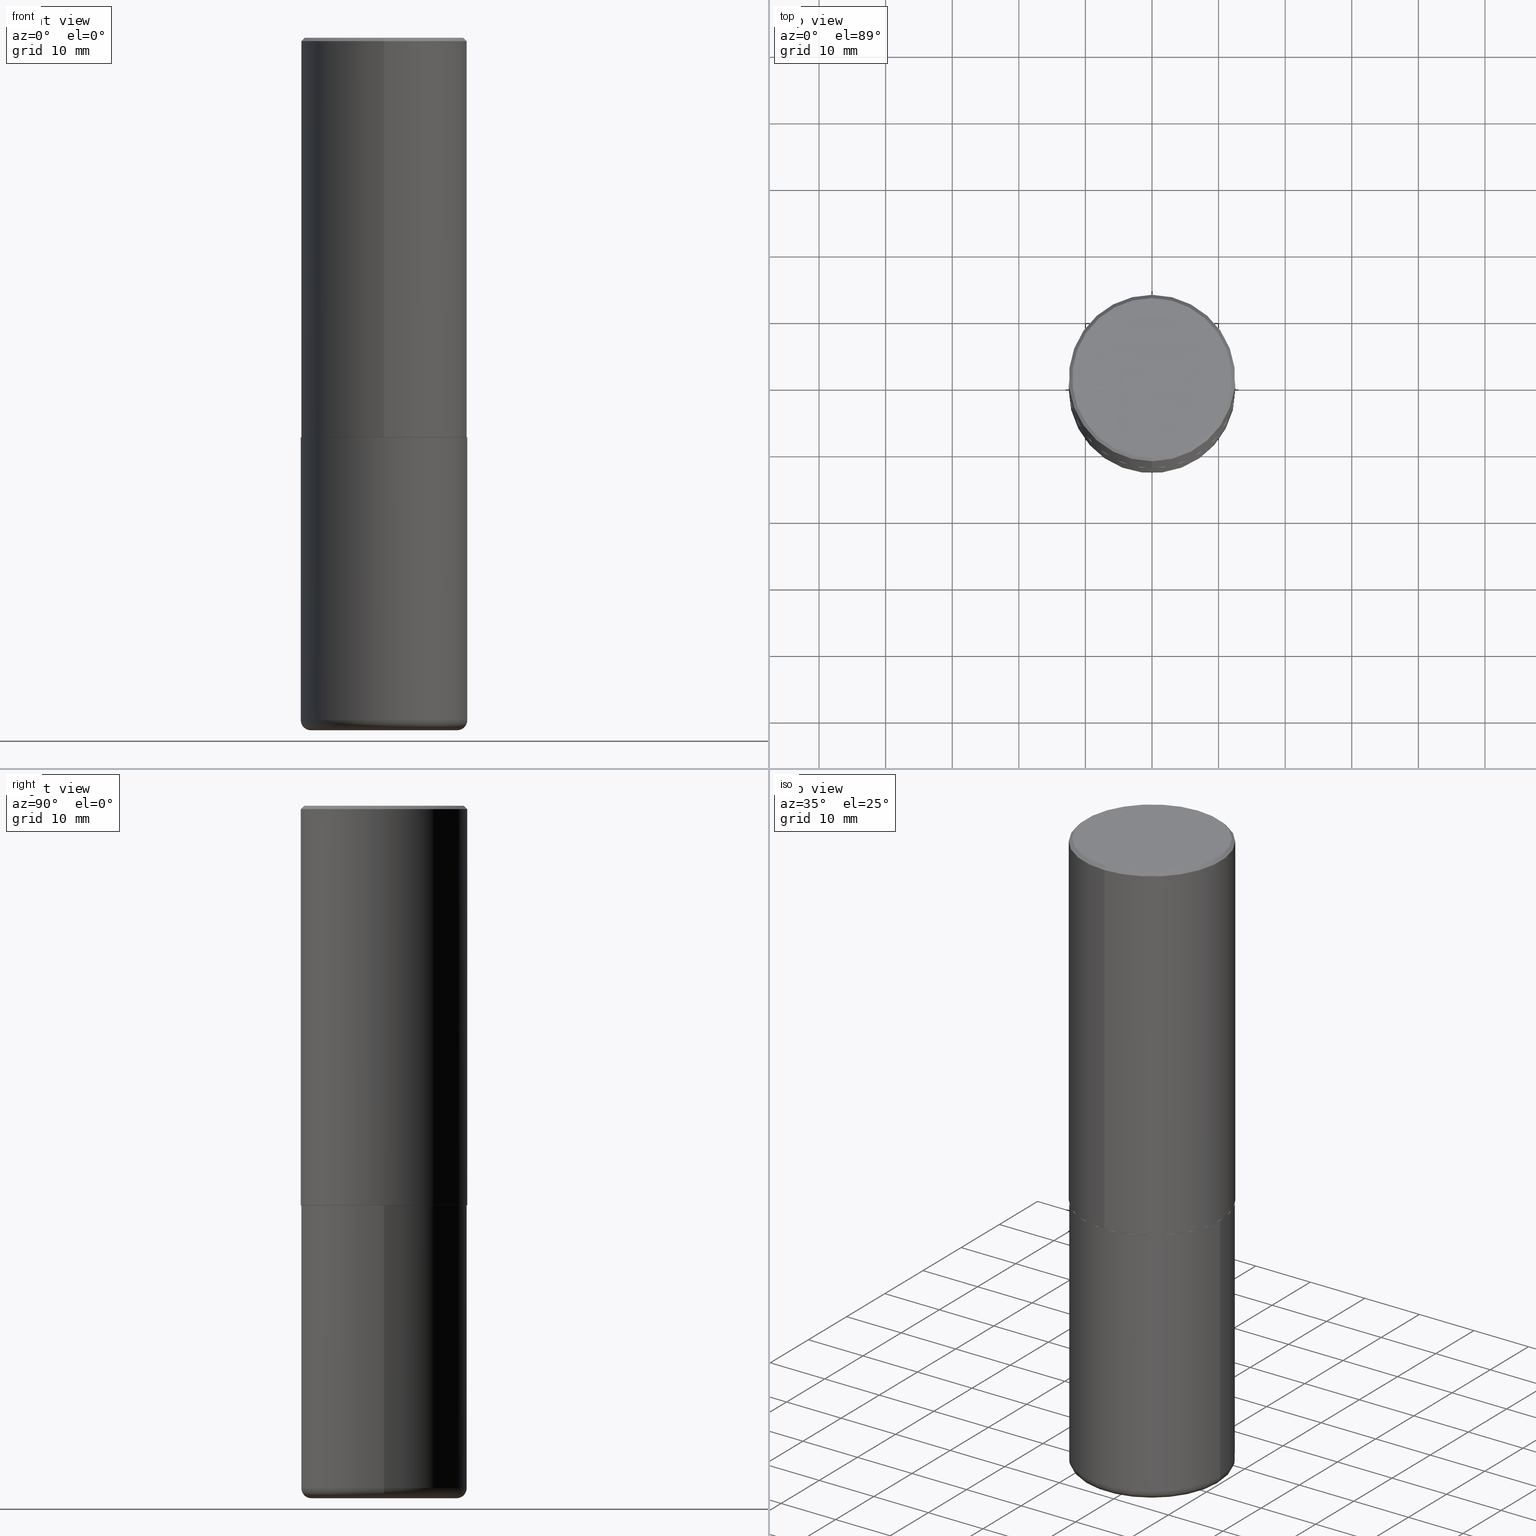
[diagram: canonical four-view strip — front | top / right | iso, engineering-drawing reading convention]
A machine part, canonical four-view strip (front | top / right | iso — engineering-drawing reading convention). The complete STEP part file that produces these views, byte-faithful:
ISO-10303-21;
HEADER;
FILE_DESCRIPTION (( 'STEP AP203' ),
    '1' );
FILE_NAME ('46133.STEP',
    '2024-03-04T18:40:35',
    ( '' ),
    ( '' ),
    'SwSTEP 2.0',
    'SolidWorks 2023',
    '' );
FILE_SCHEMA (( 'CONFIG_CONTROL_DESIGN' ));
ENDSEC;

DATA;
#1 = CARTESIAN_POINT ( 'NONE',  ( -0.4323499999999999566, -1.090699125381078817E-14, -4.094500000000000917 ) ) ;
#2 = ORIENTED_EDGE ( 'NONE', *, *, #113, .T. ) ;
#3 = AXIS2_PLACEMENT_3D ( 'NONE', #138, #401, #238 ) ;
#4 = AXIS2_PLACEMENT_3D ( 'NONE', #152, #90, #118 ) ;
#5 = EDGE_LOOP ( 'NONE', ( #37, #251 ) ) ;
#6 = ADVANCED_FACE ( 'NONE', ( #199 ), #342, .F. ) ;
#7 = DIRECTION ( 'NONE',  ( -2.447678359454775616E-29, 3.488317132801060457E-15, 1.000000000000000000 ) ) ;
#8 = ORIENTED_EDGE ( 'NONE', *, *, #119, .F. ) ;
#9 = DATE_TIME_ROLE ( 'creation_date' ) ;
#10 = ORIENTED_EDGE ( 'NONE', *, *, #416, .F. ) ;
#11 = DIRECTION ( 'NONE',  ( -6.982962677686265922E-15, -1.000000000000000000, 3.337287582609300506E-15 ) ) ;
#12 = CC_DESIGN_APPROVAL ( #393, ( #32 ) ) ;
#13 = EDGE_CURVE ( 'NONE', #357, #223, #204, .T. ) ;
#14 = DIRECTION ( 'NONE',  ( 6.982962677686265922E-15, 1.000000000000000000, -3.486624039460256937E-15 ) ) ;
#15 = DIRECTION ( 'NONE',  ( -6.982962677686266711E-15, -1.000000000000000000, 3.330506545156064285E-15 ) ) ;
#16 = PERSON_AND_ORGANIZATION ( #272, #207 ) ;
#17 = DIRECTION ( 'NONE',  ( -1.000000000000000000, 6.982962677686265922E-15, -4.876176775795935793E-29 ) ) ;
#18 = AXIS2_PLACEMENT_3D ( 'NONE', #146, #217, #21 ) ;
#19 = ADVANCED_FACE ( 'NONE', ( #233 ), #209, .T. ) ;
#20 = DIRECTION ( 'NONE',  ( -6.982962677686265922E-15, -1.000000000000000000, 3.486624039460256937E-15 ) ) ;
#21 = DIRECTION ( 'NONE',  ( -6.982962677686265922E-15, -1.000000000000000000, 3.337287582609300506E-15 ) ) ;
#22 = LINE ( 'NONE', #148, #135 ) ;
#23 = AXIS2_PLACEMENT_3D ( 'NONE', #158, #127, #133 ) ;
#24 = DIRECTION ( 'NONE',  ( -2.447678359454775616E-29, 3.488317132801060457E-15, 1.000000000000000000 ) ) ;
#25 = CARTESIAN_POINT ( 'NONE',  ( 3.366835455046433267E-15, 0.4721500000000000696, -1.742410188917000288E-15 ) ) ;
#26 = ORIENTED_EDGE ( 'NONE', *, *, #254, .F. ) ;
#27 = FACE_OUTER_BOUND ( 'NONE', #226, .T. ) ;
#28 = DIRECTION ( 'NONE',  ( -2.445468806185136877E-29, 3.491481338843145188E-15, 1.000000000000000000 ) ) ;
#29 = VERTEX_POINT ( 'NONE', #366 ) ;
#30 = EDGE_CURVE ( 'NONE', #189, #134, #266, .T. ) ;
#31 = CIRCLE ( 'NONE', #44, 0.4921500000000002539 ) ;
#32 = PRODUCT_DEFINITION_FORMATION_WITH_SPECIFIED_SOURCE ( 'ANY', '', #288, .NOT_KNOWN. ) ;
#33 = APPROVAL_STATUS ( 'not_yet_approved' ) ;
#34 = CARTESIAN_POINT ( 'NONE',  ( 5.781905820704071073E-29, -8.240102731102666843E-15, -2.362200000000000077 ) ) ;
#35 = APPLICATION_PROTOCOL_DEFINITION ( 'international standard', 'config_control_design', 1994, #240 ) ;
#36 = ORIENTED_EDGE ( 'NONE', *, *, #121, .T. ) ;
#37 = ORIENTED_EDGE ( 'NONE', *, *, #156, .F. ) ;
#38 = PERSON_AND_ORGANIZATION ( #272, #207 ) ;
#39 = CIRCLE ( 'NONE', #323, 0.4911499999999999755 ) ;
#40 = ORIENTED_EDGE ( 'NONE', *, *, #346, .T. ) ;
#41 = FACE_OUTER_BOUND ( 'NONE', #95, .T. ) ;
#42 = ORIENTED_EDGE ( 'NONE', *, *, #200, .F. ) ;
#43 = EDGE_CURVE ( 'NONE', #70, #363, #117, .T. ) ;
#44 = AXIS2_PLACEMENT_3D ( 'NONE', #86, #175, #15 ) ;
#45 = CARTESIAN_POINT ( 'NONE',  ( 0.000000000000000000, 0.000000000000000000, 0.000000000000000000 ) ) ;
#46 = AXIS2_PLACEMENT_3D ( 'NONE', #383, #413, #93 ) ;
#47 = DIRECTION ( 'NONE',  ( -2.445468806185136597E-29, 3.491481338843145583E-15, 1.000000000000000000 ) ) ;
#48 = FACE_OUTER_BOUND ( 'NONE', #255, .T. ) ;
#49 = DIRECTION ( 'NONE',  ( 1.000000000000000000, -6.982962677686265133E-15, 0.000000000000000000 ) ) ;
#50 = APPROVAL ( #219, 'UNSPECIFIED' ) ;
#51 = FACE_OUTER_BOUND ( 'NONE', #229, .T. ) ;
#52 = PERSON_AND_ORGANIZATION_ROLE ( 'design_supplier' ) ;
#53 = CARTESIAN_POINT ( 'NONE',  ( 5.776686413970530874E-29, -8.247577218615279626E-15, -2.362200000000000077 ) ) ;
#54 = AXIS2_PLACEMENT_3D ( 'NONE', #45, #168, #120 ) ;
#55 = DIRECTION ( 'NONE',  ( 1.000000000000000000, -6.982962677686265922E-15, 4.876176775795935793E-29 ) ) ;
#56 = LINE ( 'NONE', #206, #123 ) ;
#57 = DIRECTION ( 'NONE',  ( 2.447678359454775616E-29, -3.488317132801060457E-15, -1.000000000000000000 ) ) ;
#58 = ADVANCED_BREP_SHAPE_REPRESENTATION ( '46133', ( #353, #350, #414 ), #174 ) ;
#59 = AXIS2_PLACEMENT_3D ( 'NONE', #110, #399, #369 ) ;
#60 = AXIS2_PLACEMENT_3D ( 'NONE', #410, #408, #85 ) ;
#61 = CARTESIAN_POINT ( 'NONE',  ( 0.4921500000000000874, -1.752374483965373598E-14, -4.034700000000000841 ) ) ;
#62 = PLANE ( 'NONE',  #360 ) ;
#63 = LINE ( 'NONE', #314, #216 ) ;
#64 = EDGE_CURVE ( 'NONE', #286, #363, #201, .T. ) ;
#65 = PERSON_AND_ORGANIZATION_ROLE ( 'creator' ) ;
#66 = CIRCLE ( 'NONE', #409, 0.4921500000000000319 ) ;
#67 = AXIS2_PLACEMENT_3D ( 'NONE', #210, #178, #306 ) ;
#68 = DATE_AND_TIME ( #91, #317 ) ;
#69 = ORIENTED_EDGE ( 'NONE', *, *, #372, .T. ) ;
#70 = VERTEX_POINT ( 'NONE', #242 ) ;
#71 = ORIENTED_EDGE ( 'NONE', *, *, #405, .T. ) ;
#72 = AXIS2_PLACEMENT_3D ( 'NONE', #262, #79, #17 ) ;
#73 = APPROVAL_DATE_TIME ( #356, #50 ) ;
#74 = AXIS2_PLACEMENT_3D ( 'NONE', #385, #7, #283 ) ;
#75 = ORIENTED_EDGE ( 'NONE', *, *, #346, .F. ) ;
#76 = ORIENTED_EDGE ( 'NONE', *, *, #94, .T. ) ;
#77 = EDGE_CURVE ( 'NONE', #129, #286, #82, .T. ) ;
#78 = DIRECTION ( 'NONE',  ( 1.000000000000000000, -6.982962677686265922E-15, 4.876176775795935793E-29 ) ) ;
#79 = DIRECTION ( 'NONE',  ( 2.438088387897960049E-29, -3.491481338843145188E-15, -1.000000000000000000 ) ) ;
#80 = CIRCLE ( 'NONE', #309, 0.4921499999999999764 ) ;
#81 = LOCAL_TIME ( 13, 40, 35.00000000000000000, #358 ) ;
#82 = LINE ( 'NONE', #370, #340 ) ;
#83 = ORIENTED_EDGE ( 'NONE', *, *, #30, .F. ) ;
#84 = CARTESIAN_POINT ( 'NONE',  ( 4.895356718909577366E-31, -6.976634265602157842E-17, -0.02000000000000010797 ) ) ;
#85 = DIRECTION ( 'NONE',  ( -6.982962677686265922E-15, -1.000000000000000000, 3.337287582609300506E-15 ) ) ;
#86 = CARTESIAN_POINT ( 'NONE',  ( 5.779458142344616674E-29, -8.236614413969865531E-15, -2.361200000000000188 ) ) ;
#87 = PLANE ( 'NONE',  #67 ) ;
#88 = ORIENTED_EDGE ( 'NONE', *, *, #13, .F. ) ;
#89 = ADVANCED_FACE ( 'NONE', ( #51 ), #285, .T. ) ;
#90 = DIRECTION ( 'NONE',  ( -2.445468806185136597E-29, 3.491481338843145583E-15, 1.000000000000000000 ) ) ;
#91 = CALENDAR_DATE ( 2024, 4, 3 ) ;
#92 = AXIS2_PLACEMENT_3D ( 'NONE', #203, #364, #115 ) ;
#93 = DIRECTION ( 'NONE',  ( 1.000000000000000000, -6.982962677686264344E-15, 4.883557194083111780E-29 ) ) ;
#94 = EDGE_CURVE ( 'NONE', #352, #223, #80, .T. ) ;
#95 = EDGE_LOOP ( 'NONE', ( #97, #395, #411, #8 ) ) ;
#96 = DIRECTION ( 'NONE',  ( 0.000000000000000000, 0.000000000000000000, 1.000000000000000000 ) ) ;
#97 = ORIENTED_EDGE ( 'NONE', *, *, #234, .T. ) ;
#98 = CONICAL_SURFACE ( 'NONE', #334, 0.4921499999999999764, 0.7853981633974460586 ) ;
#99 = APPROVAL_PERSON_ORGANIZATION ( #140, #239, #179 ) ;
#100 = PERSON_AND_ORGANIZATION ( #272, #207 ) ;
#101 = VERTEX_POINT ( 'NONE', #336 ) ;
#102 = EDGE_CURVE ( 'NONE', #357, #289, #66, .T. ) ;
#103 = PERSON_AND_ORGANIZATION_ROLE ( 'design_owner' ) ;
#104 = ORIENTED_EDGE ( 'NONE', *, *, #43, .F. ) ;
#105 = ORIENTED_EDGE ( 'NONE', *, *, #263, .T. ) ;
#106 = CLOSED_SHELL ( 'NONE', ( #258, #89, #359, #320, #354, #19 ) ) ;
#107 = EDGE_CURVE ( 'NONE', #363, #286, #180, .T. ) ;
#108 = DIRECTION ( 'NONE',  ( -2.447678359454775616E-29, 3.488317132801060062E-15, 1.000000000000000000 ) ) ;
#109 = APPROVAL_DATE_TIME ( #329, #393 ) ;
#110 = CARTESIAN_POINT ( 'NONE',  ( 3.297005828269570364E-15, 0.4721500000000000696, -1.694709561584510512E-15 ) ) ;
#111 = AXIS2_PLACEMENT_3D ( 'NONE', #275, #147, #247 ) ;
#112 = DIRECTION ( 'NONE',  ( -2.447678359454775616E-29, 3.488317132801060062E-15, 1.000000000000000000 ) ) ;
#113 = EDGE_CURVE ( 'NONE', #289, #357, #396, .T. ) ;
#114 = PERSON_AND_ORGANIZATION_ROLE ( 'creator' ) ;
#115 = DIRECTION ( 'NONE',  ( 1.000000000000000000, -6.982962677686264344E-15, 4.883557194083111780E-29 ) ) ;
#116 = CARTESIAN_POINT ( 'NONE',  ( 5.776686413970530874E-29, -8.247577218615279626E-15, -2.362200000000000077 ) ) ;
#117 = LINE ( 'NONE', #338, #294 ) ;
#118 = DIRECTION ( 'NONE',  ( 1.000000000000000000, -6.982962677686265133E-15, 0.000000000000000000 ) ) ;
#119 = EDGE_CURVE ( 'NONE', #134, #363, #56, .T. ) ;
#120 = DIRECTION ( 'NONE',  ( -6.982962677686265922E-15, -1.000000000000000000, 3.488317132801060457E-15 ) ) ;
#121 = EDGE_CURVE ( 'NONE', #129, #134, #31, .T. ) ;
#122 = DIRECTION ( 'NONE',  ( 5.024295867788576727E-15, 0.7071067811866224018, 0.7071067811864726327 ) ) ;
#123 = VECTOR ( 'NONE', #108, 39.37007874015748143 ) ;
#124 = CYLINDRICAL_SURFACE ( 'NONE', #301, 0.4921499999999999764 ) ;
#125 = COORDINATED_UNIVERSAL_TIME_OFFSET ( 5, 0, .BEHIND. ) ;
#126 = ORIENTED_EDGE ( 'NONE', *, *, #328, .T. ) ;
#127 = DIRECTION ( 'NONE',  ( -6.982962677686266711E-15, -1.000000000000000000, 3.491481338843145583E-15 ) ) ;
#128 = SHAPE_DEFINITION_REPRESENTATION ( #387, #58 ) ;
#129 = VERTEX_POINT ( 'NONE', #177 ) ;
#130 =( NAMED_UNIT ( * ) PLANE_ANGLE_UNIT ( ) SI_UNIT ( $, .RADIAN. ) );
#131 = ORIENTED_EDGE ( 'NONE', *, *, #234, .F. ) ;
#132 = CC_DESIGN_DATE_AND_TIME_ASSIGNMENT ( #220, #218, ( #269 ) ) ;
#133 = DIRECTION ( 'NONE',  ( 1.000000000000000000, -6.982962677686294321E-15, 0.000000000000000000 ) ) ;
#134 = VERTEX_POINT ( 'NONE', #136 ) ;
#135 = VECTOR ( 'NONE', #188, 39.37007874015748143 ) ;
#136 = CARTESIAN_POINT ( 'NONE',  ( -3.436665081823239768E-15, -0.4921500000000085251, -2.361199999999998411 ) ) ;
#137 = CYLINDRICAL_SURFACE ( 'NONE', #54, 0.4921500000000000874 ) ;
#138 = CARTESIAN_POINT ( 'NONE',  ( 1.001297202692504327E-28, -1.429587034189326465E-14, -4.094500000000000917 ) ) ;
#139 = ADVANCED_FACE ( 'NONE', ( #296 ), #98, .T. ) ;
#140 = PERSON_AND_ORGANIZATION ( #272, #207 ) ;
#141 = LOCAL_TIME ( 13, 40, 35.00000000000000000, #202 ) ;
#142 = CONICAL_SURFACE ( 'NONE', #167, 0.4921499999999999764, 0.7853981633974460586 ) ;
#143 = DIRECTION ( 'NONE',  ( -2.445468806185136597E-29, 3.491481338843145583E-15, 1.000000000000000000 ) ) ;
#144 = CYLINDRICAL_SURFACE ( 'NONE', #287, 0.4921499999999999764 ) ;
#145 = CARTESIAN_POINT ( 'NONE',  ( 4.895356718909577366E-31, -6.976634265602157842E-17, -0.02000000000000010797 ) ) ;
#146 = CARTESIAN_POINT ( 'NONE',  ( 5.781905820704071073E-29, -8.240102731102666843E-15, -2.362200000000000077 ) ) ;
#147 = DIRECTION ( 'NONE',  ( 7.105427357601001859E-15, 1.000000000000000000, -3.491481338843145583E-15 ) ) ;
#148 = CARTESIAN_POINT ( 'NONE',  ( 3.436665081823296171E-15, 0.4921499999999999209, -0.02000000000000182188 ) ) ;
#149 = CIRCLE ( 'NONE', #3, 0.4323499999999999566 ) ;
#150 = FACE_OUTER_BOUND ( 'NONE', #253, .T. ) ;
#151 = CARTESIAN_POINT ( 'NONE',  ( 3.489830646685789081E-15, 0.4911499999999917043, -2.362200000000001854 ) ) ;
#152 = CARTESIAN_POINT ( 'NONE',  ( 1.001297202692504327E-28, -1.429587034189326465E-14, -4.094500000000000917 ) ) ;
#153 = CIRCLE ( 'NONE', #23, 0.05980000000000013777 ) ;
#154 = APPROVAL_ROLE ( '' ) ;
#155 = PERSON_AND_ORGANIZATION ( #272, #207 ) ;
#156 = EDGE_CURVE ( 'NONE', #29, #418, #149, .T. ) ;
#157 = ORIENTED_EDGE ( 'NONE', *, *, #64, .T. ) ;
#158 = CARTESIAN_POINT ( 'NONE',  ( 0.4323499999999999566, -1.710616367152809970E-14, -4.034700000000000841 ) ) ;
#159 = ORIENTED_EDGE ( 'NONE', *, *, #30, .T. ) ;
#160 = LOCAL_TIME ( 13, 40, 35.00000000000000000, #184 ) ;
#161 = CALENDAR_DATE ( 2024, 4, 3 ) ;
#162 = ORIENTED_EDGE ( 'NONE', *, *, #263, .F. ) ;
#163 = APPROVAL_DATE_TIME ( #68, #239 ) ;
#164 = EDGE_LOOP ( 'NONE', ( #104, #315, #355, #157 ) ) ;
#165 = PERSON_AND_ORGANIZATION_ROLE ( 'classification_officer' ) ;
#166 = ORIENTED_EDGE ( 'NONE', *, *, #156, .T. ) ;
#167 = AXIS2_PLACEMENT_3D ( 'NONE', #375, #57, #208 ) ;
#168 = DIRECTION ( 'NONE',  ( -2.447678359454775616E-29, 3.488317132801060457E-15, 1.000000000000000000 ) ) ;
#169 = CARTESIAN_POINT ( 'NONE',  ( 9.866732992315171563E-29, -1.408707975783044020E-14, -4.034700000000000841 ) ) ;
#170 = DESIGN_CONTEXT ( 'detailed design', #240, 'design' ) ;
#171 = CC_DESIGN_PERSON_AND_ORGANIZATION_ASSIGNMENT ( #155, #103, ( #288 ) ) ;
#172 = CARTESIAN_POINT ( 'NONE',  ( -3.429682119145551781E-15, -0.4911500000000082466, -2.362199999999998745 ) ) ;
#173 = DIRECTION ( 'NONE',  ( -2.447678359454775616E-29, 3.488317132801060457E-15, 1.000000000000000000 ) ) ;
#174 =( GEOMETRIC_REPRESENTATION_CONTEXT ( 3 ) GLOBAL_UNCERTAINTY_ASSIGNED_CONTEXT ( ( #185 ) ) GLOBAL_UNIT_ASSIGNED_CONTEXT ( ( #319, #130, #394 ) ) REPRESENTATION_CONTEXT ( 'NONE', 'WORKASPACE' ) );
#175 = DIRECTION ( 'NONE',  ( -2.447678359454775616E-29, 3.488317132801060457E-15, 1.000000000000000000 ) ) ;
#176 = PRODUCT_RELATED_PRODUCT_CATEGORY ( 'detail', '', ( #288 ) ) ;
#177 = CARTESIAN_POINT ( 'NONE',  ( 3.496936074043363268E-15, 0.4921499999999920383, -2.361200000000001964 ) ) ;
#178 = DIRECTION ( 'NONE',  ( -2.447678359454775616E-29, 3.488317132801060062E-15, 1.000000000000000000 ) ) ;
#179 = APPROVAL_ROLE ( '' ) ;
#180 = CIRCLE ( 'NONE', #379, 0.4921499999999999764 ) ;
#181 = CIRCLE ( 'NONE', #264, 0.4721500000000000696 ) ;
#182 = VERTEX_POINT ( 'NONE', #25 ) ;
#183 = CARTESIAN_POINT ( 'NONE',  ( 5.776686413970530874E-29, -8.247577218615279626E-15, -2.362200000000000077 ) ) ;
#184 = COORDINATED_UNIVERSAL_TIME_OFFSET ( 5, 0, .BEHIND. ) ;
#185 = UNCERTAINTY_MEASURE_WITH_UNIT (LENGTH_MEASURE( 1.000000000000000082E-05 ), #319, 'distance_accuracy_value', 'NONE');
#186 =( LENGTH_UNIT ( ) NAMED_UNIT ( * ) SI_UNIT ( $, .METRE. ) );
#187 = EDGE_LOOP ( 'NONE', ( #331, #361, #324, #250 ) ) ;
#188 = DIRECTION ( 'NONE',  ( 4.937700262164536209E-15, 0.7071067811865434649, -0.7071067811865515695 ) ) ;
#189 = VERTEX_POINT ( 'NONE', #378 ) ;
#190 = LENGTH_MEASURE_WITH_UNIT ( LENGTH_MEASURE( 0.02539999999999999897 ), #186 );
#191 = ORIENTED_EDGE ( 'NONE', *, *, #254, .T. ) ;
#192 = AXIS2_PLACEMENT_3D ( 'NONE', #116, #371, #196 ) ;
#193 = APPLICATION_CONTEXT ( 'configuration controlled 3d designs of mechanical parts and assemblies' ) ;
#194 = DATE_AND_TIME ( #161, #160 ) ;
#195 = ORIENTED_EDGE ( 'NONE', *, *, #245, .T. ) ;
#196 = DIRECTION ( 'NONE',  ( 1.000000000000000000, -6.982962677686263555E-15, 0.000000000000000000 ) ) ;
#197 = EDGE_LOOP ( 'NONE', ( #76, #105 ) ) ;
#198 = DIRECTION ( 'NONE',  ( -6.982962677686265922E-15, -1.000000000000000000, 3.488317132801060457E-15 ) ) ;
#199 = FACE_OUTER_BOUND ( 'NONE', #318, .T. ) ;
#200 = EDGE_CURVE ( 'NONE', #418, #357, #237, .T. ) ;
#201 = CIRCLE ( 'NONE', #300, 0.4921499999999999764 ) ;
#202 = COORDINATED_UNIVERSAL_TIME_OFFSET ( 5, 0, .BEHIND. ) ;
#203 = CARTESIAN_POINT ( 'NONE',  ( 9.866732992315171563E-29, -1.408707975783044020E-14, -4.034700000000000841 ) ) ;
#204 = LINE ( 'NONE', #299, #243 ) ;
#205 = CC_DESIGN_PERSON_AND_ORGANIZATION_ASSIGNMENT ( #38, #65, ( #291 ) ) ;
#206 = CARTESIAN_POINT ( 'NONE',  ( -3.436665081823296565E-15, -0.4921500000000000874, 1.716775276908042252E-15 ) ) ;
#207 = ORGANIZATION ( 'UNSPECIFIED', 'UNSPECIFIED', '' ) ;
#208 = DIRECTION ( 'NONE',  ( 6.982962677686265922E-15, 1.000000000000000000, -3.486624039460256937E-15 ) ) ;
#209 = PLANE ( 'NONE',  #72 ) ;
#210 = CARTESIAN_POINT ( 'NONE',  ( 5.781905820704071073E-29, -8.240102731102666843E-15, -2.362200000000000077 ) ) ;
#211 = ORIENTED_EDGE ( 'NONE', *, *, #121, .F. ) ;
#212 = FACE_OUTER_BOUND ( 'NONE', #164, .T. ) ;
#213 = CC_DESIGN_DATE_AND_TIME_ASSIGNMENT ( #194, #9, ( #291 ) ) ;
#214 = DIMENSIONAL_EXPONENTS ( 1.000000000000000000, 0.000000000000000000, 0.000000000000000000, 0.000000000000000000, 0.000000000000000000, 0.000000000000000000, 0.000000000000000000 ) ;
#215 = FACE_OUTER_BOUND ( 'NONE', #310, .T. ) ;
#216 = VECTOR ( 'NONE', #28, 39.37007874015748143 ) ;
#217 = DIRECTION ( 'NONE',  ( -2.447678359454775616E-29, 3.488317132801060457E-15, 1.000000000000000000 ) ) ;
#218 = DATE_TIME_ROLE ( 'classification_date' ) ;
#219 = APPROVAL_STATUS ( 'not_yet_approved' ) ;
#220 = DATE_AND_TIME ( #335, #141 ) ;
#221 = CARTESIAN_POINT ( 'NONE',  ( 0.000000000000000000, 0.000000000000000000, 0.000000000000000000 ) ) ;
#222 = AXIS2_PLACEMENT_3D ( 'NONE', #305, #241, #49 ) ;
#223 = VERTEX_POINT ( 'NONE', #307 ) ;
#224 = TOROIDAL_SURFACE ( 'NONE', #46, 0.4323499999999999566, 0.05980000000000017246 ) ;
#225 = APPROVAL_ROLE ( '' ) ;
#226 = EDGE_LOOP ( 'NONE', ( #191, #40, #131, #83 ) ) ;
#227 = CALENDAR_DATE ( 2024, 4, 3 ) ;
#228 = ORIENTED_EDGE ( 'NONE', *, *, #102, .F. ) ;
#229 = EDGE_LOOP ( 'NONE', ( #166, #293, #407, #282 ) ) ;
#230 = CLOSED_SHELL ( 'NONE', ( #368, #284, #139, #380, #270, #343, #386, #6 ) ) ;
#231 = CIRCLE ( 'NONE', #4, 0.4323499999999999566 ) ;
#232 = ORIENTED_EDGE ( 'NONE', *, *, #64, .F. ) ;
#233 = FACE_OUTER_BOUND ( 'NONE', #5, .T. ) ;
#234 = EDGE_CURVE ( 'NONE', #134, #129, #345, .T. ) ;
#235 = PERSON_AND_ORGANIZATION ( #272, #207 ) ;
#236 = EDGE_LOOP ( 'NONE', ( #2, #321, #290, #392 ) ) ;
#237 = CIRCLE ( 'NONE', #111, 0.05980000000000013777 ) ;
#238 = DIRECTION ( 'NONE',  ( 1.000000000000000000, -6.982962677686265133E-15, 0.000000000000000000 ) ) ;
#239 = APPROVAL ( #404, 'UNSPECIFIED' ) ;
#240 = APPLICATION_CONTEXT ( 'configuration controlled 3d designs of mechanical parts and assemblies' ) ;
#241 = DIRECTION ( 'NONE',  ( -2.445468806185136597E-29, 3.491481338843145583E-15, 1.000000000000000000 ) ) ;
#242 = CARTESIAN_POINT ( 'NONE',  ( -3.307789109625543325E-15, -0.4721500000000000696, 1.551607679587041380E-15 ) ) ;
#243 = VECTOR ( 'NONE', #265, 39.37007874015748143 ) ;
#244 = CC_DESIGN_APPROVAL ( #239, ( #269 ) ) ;
#245 = EDGE_CURVE ( 'NONE', #289, #352, #63, .T. ) ;
#246 = CIRCLE ( 'NONE', #74, 0.4721500000000000696 ) ;
#247 = DIRECTION ( 'NONE',  ( -1.000000000000000000, 7.105427357601017636E-15, 0.000000000000000000 ) ) ;
#248 = CARTESIAN_POINT ( 'NONE',  ( -0.4921500000000000874, -1.059014368378710651E-14, -4.034700000000000841 ) ) ;
#249 = CC_DESIGN_PERSON_AND_ORGANIZATION_ASSIGNMENT ( #235, #165, ( #269 ) ) ;
#250 = ORIENTED_EDGE ( 'NONE', *, *, #400, .F. ) ;
#251 = ORIENTED_EDGE ( 'NONE', *, *, #372, .F. ) ;
#252 = AXIS2_PLACEMENT_3D ( 'NONE', #326, #281, #349 ) ;
#253 = EDGE_LOOP ( 'NONE', ( #75, #388, #159, #211 ) ) ;
#254 = EDGE_CURVE ( 'NONE', #189, #101, #39, .T. ) ;
#255 = EDGE_LOOP ( 'NONE', ( #327, #36, #256, #232 ) ) ;
#256 = ORIENTED_EDGE ( 'NONE', *, *, #119, .T. ) ;
#257 = APPROVAL_PERSON_ORGANIZATION ( #279, #393, #154 ) ;
#258 = ADVANCED_FACE ( 'NONE', ( #302 ), #144, .T. ) ;
#259 = CARTESIAN_POINT ( 'NONE',  ( 4.895356718909577366E-31, -6.976634265602157842E-17, -0.02000000000000010797 ) ) ;
#260 = CALENDAR_DATE ( 2024, 4, 3 ) ;
#261 = DIRECTION ( 'NONE',  ( -4.937700262165053702E-15, -0.7071067811866175168, 0.7071067811864775177 ) ) ;
#262 = CARTESIAN_POINT ( 'NONE',  ( 6.399774875433390499E-29, -1.947017431323977898E-14, -4.094500000000000917 ) ) ;
#263 = EDGE_CURVE ( 'NONE', #223, #352, #367, .T. ) ;
#264 = AXIS2_PLACEMENT_3D ( 'NONE', #304, #24, #377 ) ;
#265 = DIRECTION ( 'NONE',  ( -2.445468806185136877E-29, 3.491481338843145188E-15, 1.000000000000000000 ) ) ;
#266 = LINE ( 'NONE', #172, #277 ) ;
#267 = CARTESIAN_POINT ( 'NONE',  ( -3.376394089603258262E-15, -0.4921500000000000319, -0.01999999999999839059 ) ) ;
#268 = DIRECTION ( 'NONE',  ( -2.447678359454775616E-29, 3.488317132801060457E-15, 1.000000000000000000 ) ) ;
#269 = SECURITY_CLASSIFICATION ( '', '', #362 ) ;
#270 = ADVANCED_FACE ( 'NONE', ( #48 ), #297, .T. ) ;
#271 = DIRECTION ( 'NONE',  ( -6.982962677686266711E-15, -1.000000000000000000, 3.330506545156064285E-15 ) ) ;
#272 = PERSON ( 'UNSPECIFIED', 'UNSPECIFIED', 'UNSPECIFIED', ('UNSPECIFIED'), ('UNSPECIFIED'), ('UNSPECIFIED') ) ;
#273 = FACE_OUTER_BOUND ( 'NONE', #397, .T. ) ;
#274 = CARTESIAN_POINT ( 'NONE',  ( 0.4921499999999999764, -1.168424230043857383E-14, -2.362200000000000077 ) ) ;
#275 = CARTESIAN_POINT ( 'NONE',  ( -0.4323499999999999566, -1.101504823977164696E-14, -4.034700000000000841 ) ) ;
#276 = CARTESIAN_POINT ( 'NONE',  ( 0.000000000000000000, 0.000000000000000000, 0.000000000000000000 ) ) ;
#277 = VECTOR ( 'NONE', #261, 39.37007874015748143 ) ;
#278 = VECTOR ( 'NONE', #122, 39.37007874015748143 ) ;
#279 = PERSON_AND_ORGANIZATION ( #272, #207 ) ;
#280 = EDGE_LOOP ( 'NONE', ( #26, #10 ) ) ;
#281 = DIRECTION ( 'NONE',  ( -2.447678359454775616E-29, 3.488317132801060457E-15, 1.000000000000000000 ) ) ;
#282 = ORIENTED_EDGE ( 'NONE', *, *, #405, .F. ) ;
#283 = DIRECTION ( 'NONE',  ( -6.982962677686264344E-15, -1.000000000000000000, 3.488317132801060062E-15 ) ) ;
#284 = ADVANCED_FACE ( 'NONE', ( #41 ), #137, .T. ) ;
#285 = TOROIDAL_SURFACE ( 'NONE', #92, 0.4323499999999999566, 0.05980000000000017246 ) ;
#286 = VERTEX_POINT ( 'NONE', #344 ) ;
#287 = AXIS2_PLACEMENT_3D ( 'NONE', #406, #365, #78 ) ;
#288 = PRODUCT ( '46133', '46133', '', ( #322 ) ) ;
#289 = VERTEX_POINT ( 'NONE', #61 ) ;
#290 = ORIENTED_EDGE ( 'NONE', *, *, #94, .F. ) ;
#291 = PRODUCT_DEFINITION ( 'UNKNOWN', '', #32, #170 ) ;
#292 = PERSON_AND_ORGANIZATION ( #272, #207 ) ;
#293 = ORIENTED_EDGE ( 'NONE', *, *, #200, .T. ) ;
#294 = VECTOR ( 'NONE', #298, 39.37007874015748143 ) ;
#295 = CC_DESIGN_SECURITY_CLASSIFICATION ( #269, ( #32 ) ) ;
#296 = FACE_OUTER_BOUND ( 'NONE', #187, .T. ) ;
#297 = CYLINDRICAL_SURFACE ( 'NONE', #351, 0.4921500000000000874 ) ;
#298 = DIRECTION ( 'NONE',  ( -4.851104656540952442E-15, -0.7071067811865483499, -0.7071067811865466846 ) ) ;
#299 = CARTESIAN_POINT ( 'NONE',  ( -0.4921499999999999764, 3.496936074043332897E-15, -2.420853904668951509E-29 ) ) ;
#300 = AXIS2_PLACEMENT_3D ( 'NONE', #84, #339, #333 ) ;
#301 = AXIS2_PLACEMENT_3D ( 'NONE', #276, #415, #55 ) ;
#302 = FACE_OUTER_BOUND ( 'NONE', #236, .T. ) ;
#303 = DIRECTION ( 'NONE',  ( 1.000000000000000000, -6.982962677686263555E-15, 0.000000000000000000 ) ) ;
#304 = CARTESIAN_POINT ( 'NONE',  ( 2.335115865083042491E-45, -3.327898311385650714E-31, -9.540125466497949090E-17 ) ) ;
#305 = CARTESIAN_POINT ( 'NONE',  ( 9.866732992315171563E-29, -1.408707975783044020E-14, -4.034700000000000841 ) ) ;
#306 = DIRECTION ( 'NONE',  ( -6.982962677686265922E-15, -1.000000000000000000, 3.488317132801060062E-15 ) ) ;
#307 = CARTESIAN_POINT ( 'NONE',  ( -0.4921499999999999764, -7.670392414179527805E-15, -2.362200000000000077 ) ) ;
#308 = COORDINATED_UNIVERSAL_TIME_OFFSET ( 5, 0, .BEHIND. ) ;
#309 = AXIS2_PLACEMENT_3D ( 'NONE', #53, #47, #303 ) ;
#310 = EDGE_LOOP ( 'NONE', ( #88, #384, #195, #162 ) ) ;
#311 = LINE ( 'NONE', #151, #278 ) ;
#312 = CC_DESIGN_PERSON_AND_ORGANIZATION_ASSIGNMENT ( #292, #52, ( #32 ) ) ;
#313 = DIRECTION ( 'NONE',  ( -1.000000000000000000, 6.982962677686265922E-15, -4.876176775795935793E-29 ) ) ;
#314 = CARTESIAN_POINT ( 'NONE',  ( 0.4921499999999999764, -3.436665081823295777E-15, 2.399810400207969603E-29 ) ) ;
#315 = ORIENTED_EDGE ( 'NONE', *, *, #412, .F. ) ;
#316 = APPLICATION_PROTOCOL_DEFINITION ( 'international standard', 'config_control_design', 1994, #193 ) ;
#317 = LOCAL_TIME ( 13, 40, 35.00000000000000000, #308 ) ;
#318 = EDGE_LOOP ( 'NONE', ( #390, #126 ) ) ;
#319 =( CONVERSION_BASED_UNIT ( 'INCH', #190 ) LENGTH_UNIT ( ) NAMED_UNIT ( #214 ) );
#320 = ADVANCED_FACE ( 'NONE', ( #215 ), #124, .T. ) ;
#321 = ORIENTED_EDGE ( 'NONE', *, *, #13, .T. ) ;
#322 = MECHANICAL_CONTEXT ( 'NONE', #193, 'mechanical' ) ;
#323 = AXIS2_PLACEMENT_3D ( 'NONE', #34, #417, #11 ) ;
#324 = ORIENTED_EDGE ( 'NONE', *, *, #107, .T. ) ;
#325 = CONICAL_SURFACE ( 'NONE', #60, 0.4911499999999999755, 0.7853981633975507526 ) ;
#326 = CARTESIAN_POINT ( 'NONE',  ( 5.781905820704071073E-29, -8.240102731102666843E-15, -2.362200000000000077 ) ) ;
#327 = ORIENTED_EDGE ( 'NONE', *, *, #77, .F. ) ;
#328 = EDGE_CURVE ( 'NONE', #70, #182, #181, .T. ) ;
#329 = DATE_AND_TIME ( #260, #403 ) ;
#330 = DIRECTION ( 'NONE',  ( -2.447678359454775616E-29, 3.488317132801060457E-15, 1.000000000000000000 ) ) ;
#331 = ORIENTED_EDGE ( 'NONE', *, *, #328, .F. ) ;
#332 = CARTESIAN_POINT ( 'NONE',  ( 0.000000000000000000, 0.000000000000000000, 0.000000000000000000 ) ) ;
#333 = DIRECTION ( 'NONE',  ( -6.982962677686265922E-15, -1.000000000000000000, 3.486624039460256937E-15 ) ) ;
#334 = AXIS2_PLACEMENT_3D ( 'NONE', #259, #398, #14 ) ;
#335 = CALENDAR_DATE ( 2024, 4, 3 ) ;
#336 = CARTESIAN_POINT ( 'NONE',  ( 3.493383360364590374E-15, 0.4911499999999917043, -2.362200000000001854 ) ) ;
#337 = CC_DESIGN_PERSON_AND_ORGANIZATION_ASSIGNMENT ( #16, #114, ( #32 ) ) ;
#338 = CARTESIAN_POINT ( 'NONE',  ( -3.376394089603258262E-15, -0.4921500000000000319, -0.01999999999999839059 ) ) ;
#339 = DIRECTION ( 'NONE',  ( -2.447678359454775616E-29, 3.488317132801060457E-15, 1.000000000000000000 ) ) ;
#340 = VECTOR ( 'NONE', #112, 39.37007874015748143 ) ;
#341 = FACE_OUTER_BOUND ( 'NONE', #280, .T. ) ;
#342 = PLANE ( 'NONE',  #59 ) ;
#343 = ADVANCED_FACE ( 'NONE', ( #150 ), #381, .T. ) ;
#344 = CARTESIAN_POINT ( 'NONE',  ( 3.436665081823296171E-15, 0.4921499999999999209, -0.02000000000000182188 ) ) ;
#345 = CIRCLE ( 'NONE', #402, 0.4921500000000002539 ) ;
#346 = EDGE_CURVE ( 'NONE', #101, #129, #311, .T. ) ;
#347 = FACE_OUTER_BOUND ( 'NONE', #197, .T. ) ;
#348 = CARTESIAN_POINT ( 'NONE',  ( 5.779458142344616674E-29, -8.236614413969865531E-15, -2.361200000000000188 ) ) ;
#349 = DIRECTION ( 'NONE',  ( -6.982962677686265922E-15, -1.000000000000000000, 3.337287582609300506E-15 ) ) ;
#350 = MANIFOLD_SOLID_BREP ( 'Body-Move/Copy2[2]', #230 ) ;
#351 = AXIS2_PLACEMENT_3D ( 'NONE', #332, #330, #198 ) ;
#352 = VERTEX_POINT ( 'NONE', #274 ) ;
#353 = MANIFOLD_SOLID_BREP ( 'Body-Move/Copy2[1]', #106 ) ;
#354 = ADVANCED_FACE ( 'NONE', ( #273 ), #224, .T. ) ;
#355 = ORIENTED_EDGE ( 'NONE', *, *, #400, .T. ) ;
#356 = DATE_AND_TIME ( #227, #81 ) ;
#357 = VERTEX_POINT ( 'NONE', #248 ) ;
#358 = COORDINATED_UNIVERSAL_TIME_OFFSET ( 5, 0, .BEHIND. ) ;
#359 = ADVANCED_FACE ( 'NONE', ( #347 ), #62, .F. ) ;
#360 = AXIS2_PLACEMENT_3D ( 'NONE', #183, #376, #313 ) ;
#361 = ORIENTED_EDGE ( 'NONE', *, *, #43, .T. ) ;
#362 = SECURITY_CLASSIFICATION_LEVEL ( 'unclassified' ) ;
#363 = VERTEX_POINT ( 'NONE', #267 ) ;
#364 = DIRECTION ( 'NONE',  ( -2.445468806185136597E-29, 3.491481338843145583E-15, 1.000000000000000000 ) ) ;
#365 = DIRECTION ( 'NONE',  ( -2.445468806185136597E-29, 3.491481338843145583E-15, 1.000000000000000000 ) ) ;
#366 = CARTESIAN_POINT ( 'NONE',  ( 0.4323499999999999566, -1.731495425559091942E-14, -4.094500000000000917 ) ) ;
#367 = CIRCLE ( 'NONE', #192, 0.4921499999999999764 ) ;
#368 = ADVANCED_FACE ( 'NONE', ( #27 ), #325, .T. ) ;
#369 = DIRECTION ( 'NONE',  ( 6.982962677686265922E-15, 1.000000000000000000, -3.488317132801060062E-15 ) ) ;
#370 = CARTESIAN_POINT ( 'NONE',  ( 3.496936074043333291E-15, 0.4921500000000000874, -1.716775276908042252E-15 ) ) ;
#371 = DIRECTION ( 'NONE',  ( -2.445468806185136597E-29, 3.491481338843145583E-15, 1.000000000000000000 ) ) ;
#372 = EDGE_CURVE ( 'NONE', #418, #29, #231, .T. ) ;
#373 = DIRECTION ( 'NONE',  ( 1.000000000000000000, -6.982962677686265133E-15, 0.000000000000000000 ) ) ;
#374 = CC_DESIGN_APPROVAL ( #50, ( #291 ) ) ;
#375 = CARTESIAN_POINT ( 'NONE',  ( 4.895356718909577366E-31, -6.976634265602157842E-17, -0.02000000000000010797 ) ) ;
#376 = DIRECTION ( 'NONE',  ( 2.438088387897960049E-29, -3.491481338843145188E-15, -1.000000000000000000 ) ) ;
#377 = DIRECTION ( 'NONE',  ( -6.982962677686264344E-15, -1.000000000000000000, 3.488317132801060062E-15 ) ) ;
#378 = CARTESIAN_POINT ( 'NONE',  ( -3.429682119145551781E-15, -0.4911500000000082466, -2.362199999999998745 ) ) ;
#379 = AXIS2_PLACEMENT_3D ( 'NONE', #145, #173, #20 ) ;
#380 = ADVANCED_FACE ( 'NONE', ( #212 ), #142, .T. ) ;
#381 = CONICAL_SURFACE ( 'NONE', #18, 0.4911499999999999755, 0.7853981633975507526 ) ;
#382 = APPROVAL_PERSON_ORGANIZATION ( #100, #50, #225 ) ;
#383 = CARTESIAN_POINT ( 'NONE',  ( 9.866732992315171563E-29, -1.408707975783044020E-14, -4.034700000000000841 ) ) ;
#384 = ORIENTED_EDGE ( 'NONE', *, *, #102, .T. ) ;
#385 = CARTESIAN_POINT ( 'NONE',  ( 2.335115865083042491E-45, -3.327898311385650714E-31, -9.540125466497949090E-17 ) ) ;
#386 = ADVANCED_FACE ( 'NONE', ( #341 ), #87, .F. ) ;
#387 = PRODUCT_DEFINITION_SHAPE ( 'NONE', 'NONE',  #291 ) ;
#388 = ORIENTED_EDGE ( 'NONE', *, *, #416, .T. ) ;
#389 = CIRCLE ( 'NONE', #252, 0.4911499999999999755 ) ;
#390 = ORIENTED_EDGE ( 'NONE', *, *, #412, .T. ) ;
#391 = DIRECTION ( 'NONE',  ( 1.000000000000000000, 0.000000000000000000, 0.000000000000000000 ) ) ;
#392 = ORIENTED_EDGE ( 'NONE', *, *, #245, .F. ) ;
#393 = APPROVAL ( #33, 'UNSPECIFIED' ) ;
#394 =( NAMED_UNIT ( * ) SI_UNIT ( $, .STERADIAN. ) SOLID_ANGLE_UNIT ( ) );
#395 = ORIENTED_EDGE ( 'NONE', *, *, #77, .T. ) ;
#396 = CIRCLE ( 'NONE', #222, 0.4921500000000000319 ) ;
#397 = EDGE_LOOP ( 'NONE', ( #42, #69, #71, #228 ) ) ;
#398 = DIRECTION ( 'NONE',  ( 2.447678359454775616E-29, -3.488317132801060457E-15, -1.000000000000000000 ) ) ;
#399 = DIRECTION ( 'NONE',  ( 2.447678359454775616E-29, -3.488317132801060062E-15, -1.000000000000000000 ) ) ;
#400 = EDGE_CURVE ( 'NONE', #182, #286, #22, .T. ) ;
#401 = DIRECTION ( 'NONE',  ( -2.445468806185136597E-29, 3.491481338843145583E-15, 1.000000000000000000 ) ) ;
#402 = AXIS2_PLACEMENT_3D ( 'NONE', #348, #268, #271 ) ;
#403 = LOCAL_TIME ( 13, 40, 35.00000000000000000, #125 ) ;
#404 = APPROVAL_STATUS ( 'not_yet_approved' ) ;
#405 = EDGE_CURVE ( 'NONE', #29, #289, #153, .T. ) ;
#406 = CARTESIAN_POINT ( 'NONE',  ( 0.000000000000000000, 0.000000000000000000, 0.000000000000000000 ) ) ;
#407 = ORIENTED_EDGE ( 'NONE', *, *, #113, .F. ) ;
#408 = DIRECTION ( 'NONE',  ( -2.447678359454775616E-29, 3.488317132801060457E-15, 1.000000000000000000 ) ) ;
#409 = AXIS2_PLACEMENT_3D ( 'NONE', #169, #143, #373 ) ;
#410 = CARTESIAN_POINT ( 'NONE',  ( 5.781905820704071073E-29, -8.240102731102666843E-15, -2.362200000000000077 ) ) ;
#411 = ORIENTED_EDGE ( 'NONE', *, *, #107, .F. ) ;
#412 = EDGE_CURVE ( 'NONE', #182, #70, #246, .T. ) ;
#413 = DIRECTION ( 'NONE',  ( -2.445468806185136597E-29, 3.491481338843145583E-15, 1.000000000000000000 ) ) ;
#414 = AXIS2_PLACEMENT_3D ( 'NONE', #221, #96, #391 ) ;
#415 = DIRECTION ( 'NONE',  ( -2.445468806185136597E-29, 3.491481338843145583E-15, 1.000000000000000000 ) ) ;
#416 = EDGE_CURVE ( 'NONE', #101, #189, #389, .T. ) ;
#417 = DIRECTION ( 'NONE',  ( -2.447678359454775616E-29, 3.488317132801060457E-15, 1.000000000000000000 ) ) ;
#418 = VERTEX_POINT ( 'NONE', #1 ) ;
ENDSEC;
END-ISO-10303-21;
